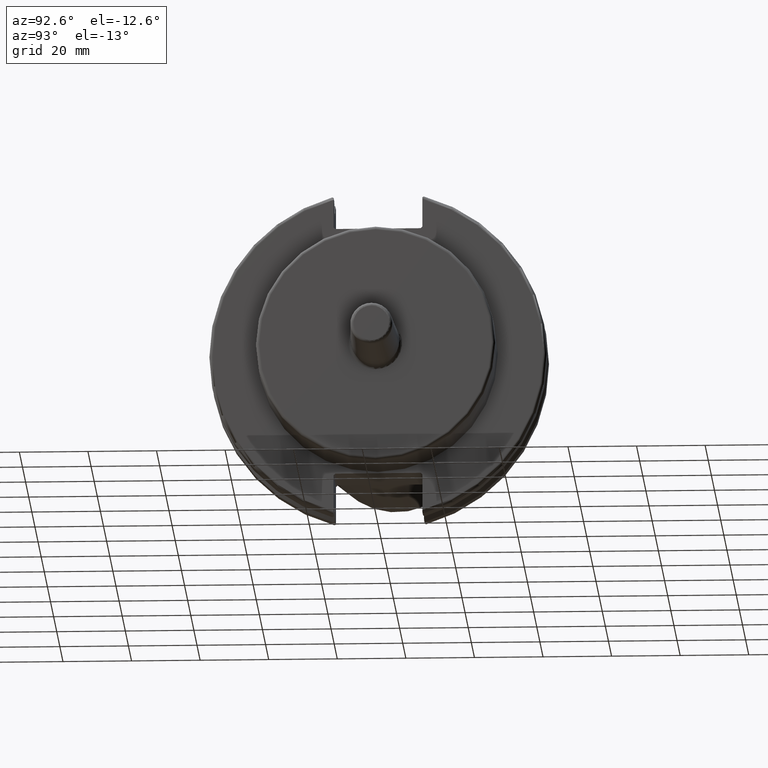
[diagram: clean part render]
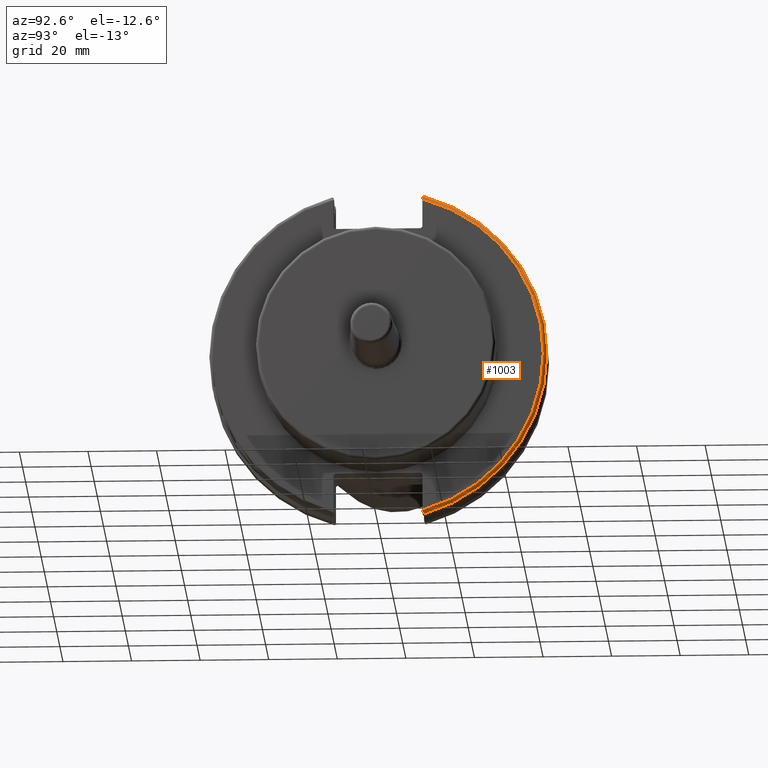
[diagram: same view with one face highlighted and labeled with its STEP entity id]
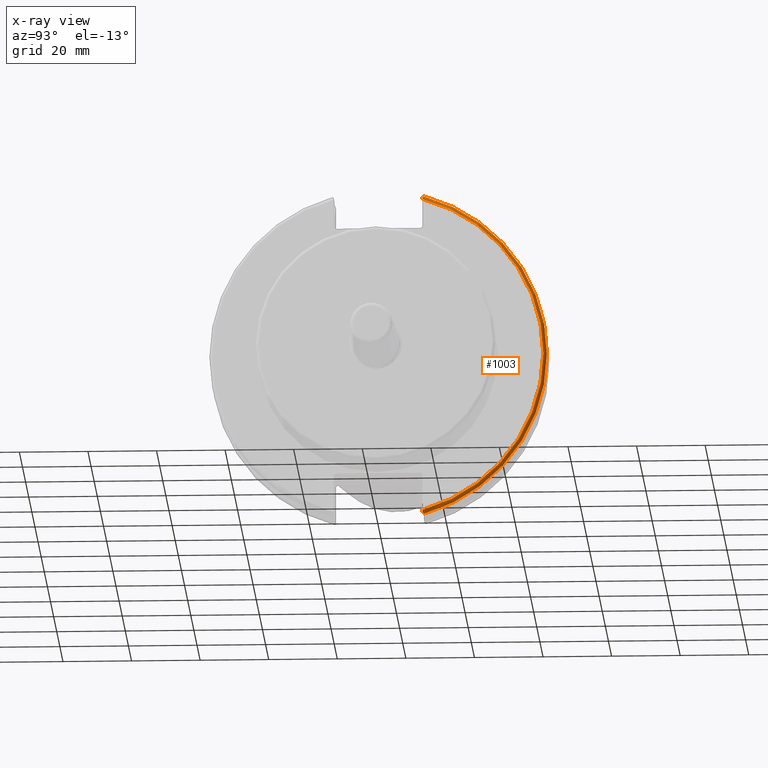
[diagram: x-ray of the same camera — body ghosted, the highlighted face saturated]
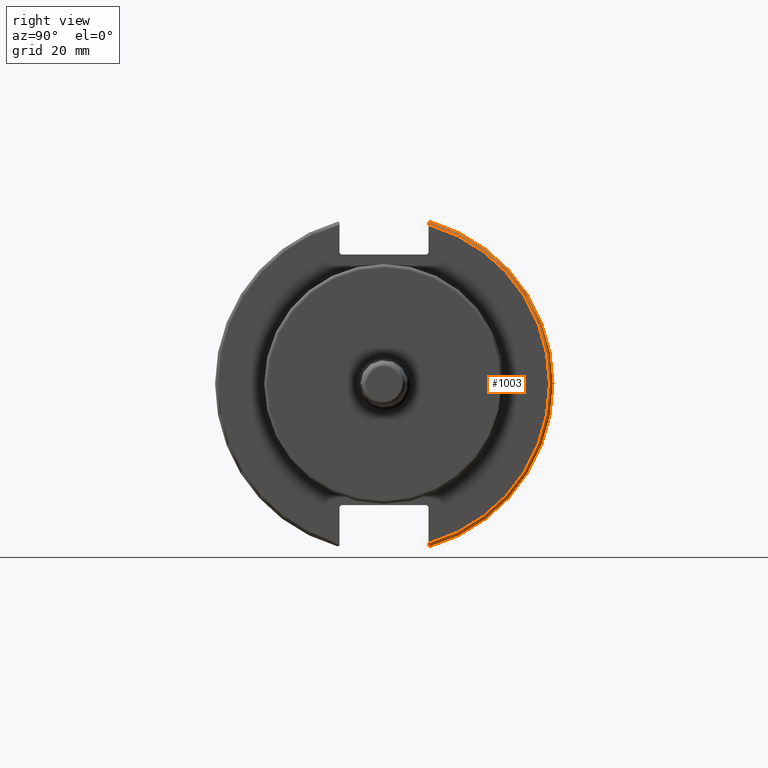
[diagram: same view with one face highlighted and labeled with its STEP entity id]
A machine part, auxiliary view. The second image highlights one B-rep face of the part: STEP entity #1003.
The next image is the same camera in x-ray: the body ghosted, the highlighted face saturated — about 0% of this face is hidden behind the body in this view.
A second angle (right view) of the same face is appended — the face is thin or edge-on in the first view.
In plain terms, the highlighted toroidal blend (fillet) surface has major radius 48.2125 mm and minor (blend) radius 1 mm.
Its self-contained STEP definition (entity closure, byte-faithful):
#31=B_SPLINE_CURVE_WITH_KNOTS('',3,(#1569,#1570,#1571,#1572,#1573,#1574),
 .UNSPECIFIED.,.F.,.F.,(4,2,4),(0.0976892167532868,0.112000071948293,0.150881870548587),
 .UNSPECIFIED.);
#32=B_SPLINE_CURVE_WITH_KNOTS('',3,(#1578,#1579,#1580,#1581,#1582,#1583),
 .UNSPECIFIED.,.F.,.F.,(4,2,4),(0.452859340315922,0.491741138916218,0.506051994111223),
 .UNSPECIFIED.);
#33=B_SPLINE_CURVE_WITH_KNOTS('',3,(#1585,#1586,#1587,#1588,#1589,#1590,
#1591,#1592),.UNSPECIFIED.,.F.,.F.,(4,2,2,4),(-0.104075769062722,-0.0730268503455479,
-0.0343639873656263,0.),.UNSPECIFIED.);
#34=B_SPLINE_CURVE_WITH_KNOTS('',3,(#1595,#1596,#1597,#1598,#1599,#1600,
#1601,#1602),.UNSPECIFIED.,.F.,.F.,(4,2,2,4),(0.,0.0343639873656263,0.0730268503455477,
0.104075769062723),.UNSPECIFIED.);
#96=TOROIDAL_SURFACE('',#1110,48.2125,1.);
#115=FACE_OUTER_BOUND('',#177,.T.);
#177=EDGE_LOOP('',(#738,#739,#740,#741,#742,#743));
#389=CIRCLE('',#1111,48.2125);
#390=CIRCLE('',#1112,49.2125);
#448=VERTEX_POINT('',#1567);
#449=VERTEX_POINT('',#1568);
#450=VERTEX_POINT('',#1575);
#451=VERTEX_POINT('',#1577);
#452=VERTEX_POINT('',#1584);
#453=VERTEX_POINT('',#1593);
#559=EDGE_CURVE('',#448,#449,#31,.T.);
#560=EDGE_CURVE('',#449,#450,#389,.T.);
#561=EDGE_CURVE('',#450,#451,#32,.T.);
#562=EDGE_CURVE('',#451,#452,#33,.T.);
#563=EDGE_CURVE('',#452,#453,#390,.T.);
#564=EDGE_CURVE('',#453,#448,#34,.T.);
#738=ORIENTED_EDGE('',*,*,#559,.T.);
#739=ORIENTED_EDGE('',*,*,#560,.T.);
#740=ORIENTED_EDGE('',*,*,#561,.T.);
#741=ORIENTED_EDGE('',*,*,#562,.T.);
#742=ORIENTED_EDGE('',*,*,#563,.T.);
#743=ORIENTED_EDGE('',*,*,#564,.T.);
#1003=ADVANCED_FACE('',(#115),#96,.T.);
#1110=AXIS2_PLACEMENT_3D('',#1566,#1279,#1280);
#1111=AXIS2_PLACEMENT_3D('',#1576,#1281,#1282);
#1112=AXIS2_PLACEMENT_3D('',#1594,#1283,#1284);
#1279=DIRECTION('center_axis',(1.,0.,0.));
#1280=DIRECTION('ref_axis',(0.,0.,-1.));
#1281=DIRECTION('center_axis',(-1.,0.,0.));
#1282=DIRECTION('ref_axis',(0.,1.,-6.12323399573677E-17));
#1283=DIRECTION('center_axis',(1.,0.,0.));
#1284=DIRECTION('ref_axis',(0.,1.,-6.12323399573677E-17));
#1566=CARTESIAN_POINT('Origin',(18.05,0.,0.));
#1567=CARTESIAN_POINT('',(18.9055020570566,12.95,46.9780755322918));
#1568=CARTESIAN_POINT('',(19.05,12.95,46.4407434937254));
#1569=CARTESIAN_POINT('Ctrl Pts',(18.9055020570566,12.95,46.9780755322918));
#1570=CARTESIAN_POINT('Ctrl Pts',(18.9315844351616,12.95,46.9333752207329));
#1571=CARTESIAN_POINT('Ctrl Pts',(18.9538432708766,12.95,46.887363294568));
#1572=CARTESIAN_POINT('Ctrl Pts',(19.0204646992875,12.95,46.7230464903732));
#1573=CARTESIAN_POINT('Ctrl Pts',(19.05,12.95,46.5703494890597));
#1574=CARTESIAN_POINT('Ctrl Pts',(19.05,12.95,46.4407434937254));
#1575=CARTESIAN_POINT('',(19.05,12.95,-46.4407434937254));
#1576=CARTESIAN_POINT('Origin',(19.05,0.,0.));
#1577=CARTESIAN_POINT('',(18.9055020570566,12.95,-46.9780755322918));
#1578=CARTESIAN_POINT('Ctrl Pts',(19.05,12.95,-46.4407434937254));
#1579=CARTESIAN_POINT('Ctrl Pts',(19.05,12.95,-46.5703494890597));
#1580=CARTESIAN_POINT('Ctrl Pts',(19.0204646992875,12.95,-46.7230464903732));
#1581=CARTESIAN_POINT('Ctrl Pts',(18.9538432708766,12.95,-46.887363294568));
#1582=CARTESIAN_POINT('Ctrl Pts',(18.9315844351616,12.95,-46.9333752207329));
#1583=CARTESIAN_POINT('Ctrl Pts',(18.9055020570566,12.95,-46.9780755322918));
#1584=CARTESIAN_POINT('',(18.05,13.4317035994433,-47.3440544806494));
#1585=CARTESIAN_POINT('Ctrl Pts',(18.9055020570566,12.95,-46.9780755322918));
#1586=CARTESIAN_POINT('Ctrl Pts',(18.8571496772125,13.0300321736484,-47.0388807469102));
#1587=CARTESIAN_POINT('Ctrl Pts',(18.792640282015,13.1083611826073,-47.0983919657547));
#1588=CARTESIAN_POINT('Ctrl Pts',(18.6399248789208,13.2478194810695,-47.2043467509586));
#1589=CARTESIAN_POINT('Ctrl Pts',(18.5186188350904,13.3242014686232,-47.2623787015413));
#1590=CARTESIAN_POINT('Ctrl Pts',(18.2983889675417,13.4067722493645,-47.3251126473446));
#1591=CARTESIAN_POINT('Ctrl Pts',(18.1645466245521,13.4317035994433,-47.3440544806494));
#1592=CARTESIAN_POINT('Ctrl Pts',(18.05,13.4317035994433,-47.3440544806494));
#1593=CARTESIAN_POINT('',(18.05,13.4317035994433,47.3440544806494));
#1594=CARTESIAN_POINT('Origin',(18.05,0.,0.));
#1595=CARTESIAN_POINT('Ctrl Pts',(18.05,13.4317035994433,47.3440544806494));
#1596=CARTESIAN_POINT('Ctrl Pts',(18.1645466245521,13.4317035994433,47.3440544806494));
#1597=CARTESIAN_POINT('Ctrl Pts',(18.2983889675417,13.4067722493645,47.3251126473446));
#1598=CARTESIAN_POINT('Ctrl Pts',(18.5186188350904,13.3242014686233,47.2623787015413));
#1599=CARTESIAN_POINT('Ctrl Pts',(18.6399248789208,13.2478194810695,47.2043467509586));
#1600=CARTESIAN_POINT('Ctrl Pts',(18.792640282015,13.1083611826073,47.0983919657547));
#1601=CARTESIAN_POINT('Ctrl Pts',(18.8571496772125,13.0300321736484,47.0388807469102));
#1602=CARTESIAN_POINT('Ctrl Pts',(18.9055020570566,12.95,46.9780755322918));